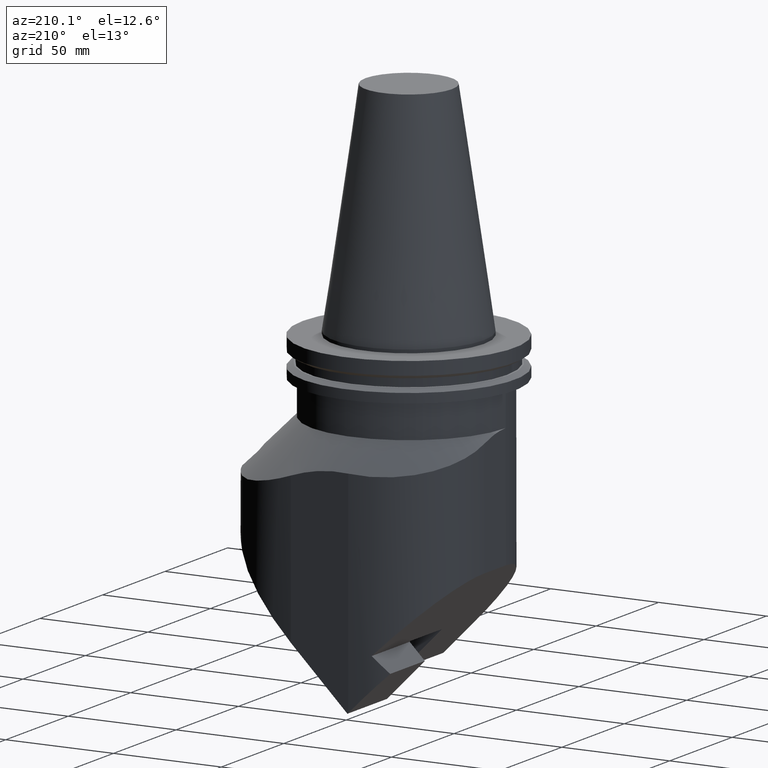
[diagram: clean part render]
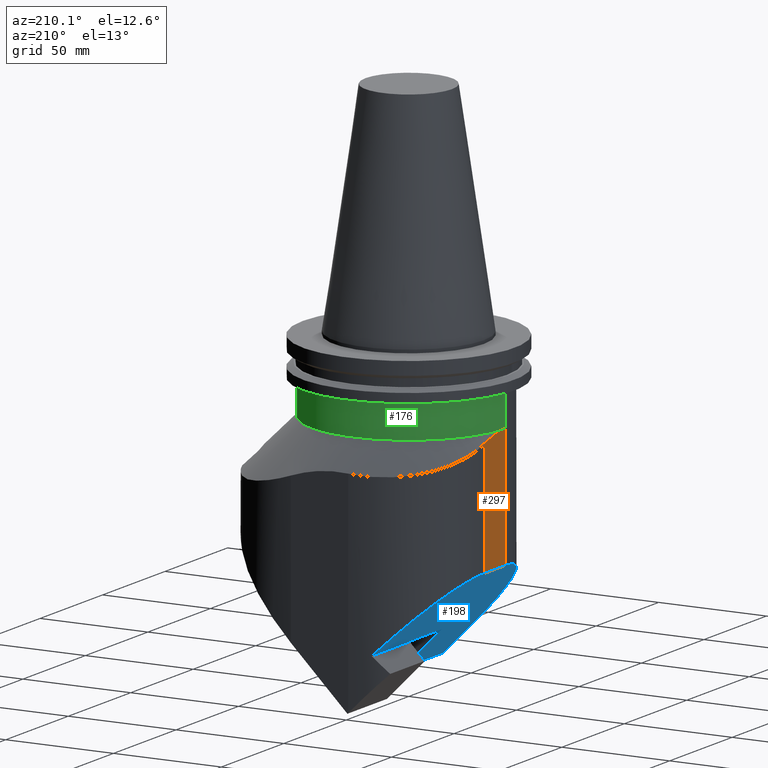
[diagram: same view with three faces highlighted in distinct colors, each labeled with its STEP entity id]
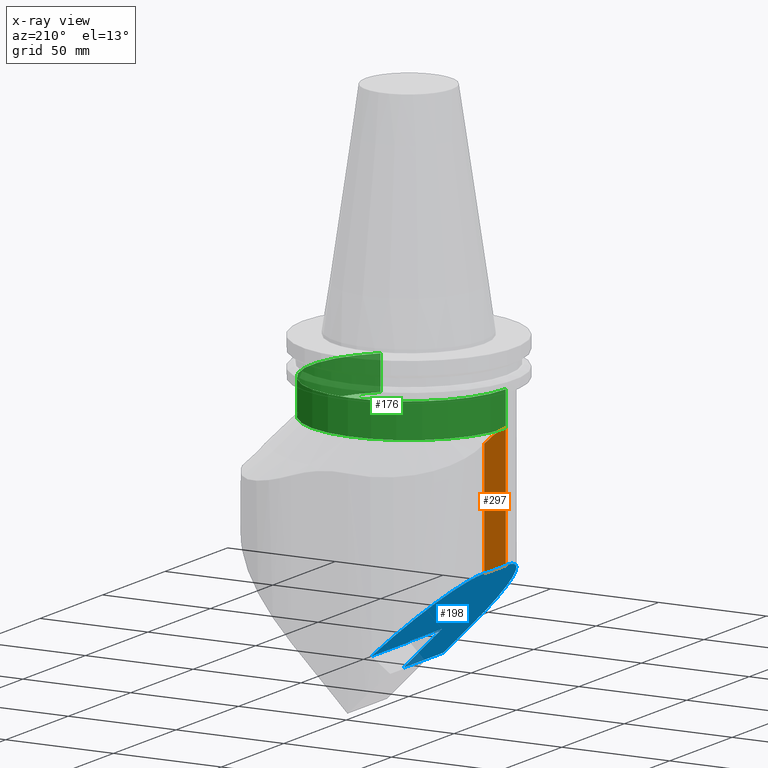
[diagram: x-ray of the same camera — body ghosted, the three highlighted faces saturated]
A machine part, auxiliary view with three faces highlighted in distinct colors.
The next image is the same camera in x-ray (body ghosted, the three faces saturated) — at least one of them is partly hidden behind the body in this view.
Their STEP definitions:

[orange] entity #297 — the highlighted planar face has unit normal (1, -0, 0).
#168=EDGE_CURVE('Unnamed[1]',#423,#439,#440,.T.);
#204=EDGE_CURVE('Unnamed[1]',#491,#408,#492,.T.);
#218=EDGE_CURVE('Unnamed[1]',#423,#491,#511,.T.);
#297=ADVANCED_FACE('Unnamed[1]',(#613),#614,.F.);
#342=EDGE_CURVE('Unnamed[1]',#439,#408,#670,.T.);
#408=VERTEX_POINT('',#741);
#423=VERTEX_POINT('',#761);
#439=VERTEX_POINT('',#792);
#440=LINE('',#793,#794);
#491=VERTEX_POINT('',#888);
#492=(B_SPLINE_CURVE(2,(#890,#891,#892,#893,#894),.UNSPECIFIED.,.F.,.F.)B_SPLINE_CURVE_WITH_KNOTS((3,2,3),(0.0,55.8128554370287,111.625710874057),.UNSPECIFIED.)RATIONAL_B_SPLINE_CURVE((1.0,1.11803398875032,1.0,1.11803398875032,1.0))BOUNDED_CURVE()REPRESENTATION_ITEM('')GEOMETRIC_REPRESENTATION_ITEM()CURVE());
#511=LINE('',#928,#929);
#613=FACE_OUTER_BOUND('',#1123,.T.);
#614=PLANE('',#1124);
#670=LINE('',#1225,#1226);
#741=CARTESIAN_POINT('',(-45.0000000000006,2.08978133942906E-013,-35.0000000000011));
#761=CARTESIAN_POINT('',(-44.9999999999966,17.0,-91.4578643728107));
#792=CARTESIAN_POINT('',(-44.9999999999966,5.65197079421115E-014,-91.4578643728107));
#793=CARTESIAN_POINT('',(-44.999999999998,4.25000000000007,-91.4578643728093));
#794=VECTOR('',#1316,1.0);
#888=CARTESIAN_POINT('',(-44.999999999998,17.0,-38.1040538832222));
#890=CARTESIAN_POINT('',(-44.999999999998,50.3115294937471,-57.5000000000014));
#891=CARTESIAN_POINT('',(-44.999999999998,20.1246117975008,-35.0000000000012));
#892=CARTESIAN_POINT('',(-44.999999999998,3.10418357685182E-014,-35.0000000000011));
#893=CARTESIAN_POINT('',(-44.999999999998,-20.1246117975007,-35.0000000000011));
#894=CARTESIAN_POINT('',(-44.9999999999981,-50.3115294937471,-57.5000000000014));
#928=CARTESIAN_POINT('',(-44.999999999998,17.0,-306.209870642012));
#929=VECTOR('',#1389,1.0);
#1123=EDGE_LOOP('',(#1502,#1503,#1504,#1505));
#1124=AXIS2_PLACEMENT_3D('',#1506,#1507,#1508);
#1225=CARTESIAN_POINT('',(-44.999999999998,8.83518355320941E-015,-306.209870642012));
#1226=VECTOR('',#1584,1.0);
#1316=DIRECTION('',(-8.62055525003064E-016,-1.0,6.40010920201612E-016));
#1389=DIRECTION('',(-1.22464679914735E-016,2.22044604925031E-016,1.0));
#1502=ORIENTED_EDGE('',*,*,#168,.T.);
#1503=ORIENTED_EDGE('',*,*,#342,.T.);
#1504=ORIENTED_EDGE('',*,*,#204,.F.);
#1505=ORIENTED_EDGE('',*,*,#218,.F.);
#1506=CARTESIAN_POINT('',(-44.999999999998,8.49999999999998,-306.209870642012));
#1507=DIRECTION('',(1.0,-8.62055525003064E-016,1.22464679914735E-016));
#1508=DIRECTION('',(8.62055525003064E-016,1.0,-2.22044604925031E-016));
#1584=DIRECTION('',(-1.22464679914735E-016,2.22044604925031E-016,1.0));

[blue] entity #198 — the highlighted planar face has unit normal (0.7071, -0, 0.7071).
#147=EDGE_CURVE('Unnamed[1]',#404,#405,#406,.T.);
#158=EDGE_CURVE('Unnamed[1]',#401,#423,#424,.T.);
#168=EDGE_CURVE('Unnamed[1]',#423,#439,#440,.T.);
#198=ADVANCED_FACE('Unnamed[1]',(#482),#483,.F.);
#246=EDGE_CURVE('Unnamed[1]',#546,#494,#547,.T.);
#253=EDGE_CURVE('Unnamed[1]',#540,#556,#557,.T.);
#306=EDGE_CURVE('Unnamed[1]',#546,#401,#625,.T.);
#326=EDGE_CURVE('Unnamed[1]',#439,#404,#651,.T.);
#338=EDGE_CURVE('Unnamed[1]',#405,#556,#666,.T.);
#340=EDGE_CURVE('Unnamed[1]',#494,#540,#668,.T.);
#401=VERTEX_POINT('',#731);
#404=VERTEX_POINT('',#735);
#405=VERTEX_POINT('',#736);
#406=LINE('',#737,#738);
#423=VERTEX_POINT('',#761);
#424=ELLIPSE('',#762,56.5685425032866,40.0);
#439=VERTEX_POINT('',#792);
#440=LINE('',#793,#794);
#482=FACE_OUTER_BOUND('',#860,.T.);
#483=PLANE('',#861);
#494=VERTEX_POINT('',#903);
#540=VERTEX_POINT('',#1018);
#546=VERTEX_POINT('',#1027);
#547=LINE('',#1028,#1029);
#556=VERTEX_POINT('',#1042);
#557=LINE('',#1043,#1044);
#625=LINE('',#1140,#1141);
#651=ELLIPSE('',#1196,45.2548340026293,32.0);
#666=LINE('',#1217,#1218);
#668=LINE('',#1221,#1222);
#731=CARTESIAN_POINT('',(-15.1358910394405,55.6944920219473,-121.321973342197));
#735=CARTESIAN_POINT('',(-13.0000000000001,-32.0,-123.457864382269));
#736=CARTESIAN_POINT('',(2.47106780657833,-32.0,-138.928932193421));
#737=CARTESIAN_POINT('',(44.1181871232674,-32.0000000000001,-180.576051522424));
#738=VECTOR('',#1290,1.0);
#761=CARTESIAN_POINT('',(-44.9999999999966,17.0,-91.4578643728107));
#762=AXIS2_PLACEMENT_3D('',#1306,#1307,#1308);
#792=CARTESIAN_POINT('',(-44.9999999999966,5.65197079421115E-014,-91.4578643728107));
#793=CARTESIAN_POINT('',(-44.999999999998,4.25000000000007,-91.4578643728093));
#794=VECTOR('',#1316,1.0);
#860=EDGE_LOOP('',(#1362,#1363,#1364,#1365,#1366,#1367,#1368,#1369,#1370));
#861=AXIS2_PLACEMENT_3D('',#1371,#1372,#1373);
#903=CARTESIAN_POINT('',(-15.4894444329048,25.3999999999998,-120.968419948628));
#1018=CARTESIAN_POINT('',(-15.4894444329048,-1.68714021023521E-014,-120.968419948628));
#1027=CARTESIAN_POINT('',(-15.1358910394406,25.3999999999998,-121.321973342197));
#1028=CARTESIAN_POINT('',(-13.7984388559087,25.3999999999998,-122.659425526124));
#1029=VECTOR('',#1419,1.0);
#1042=CARTESIAN_POINT('',(2.47106780657834,-3.1945794411254E-014,-138.928932193421));
#1043=CARTESIAN_POINT('',(-13.7984388559087,-2.11081258725946E-014,-122.659425526124));
#1044=VECTOR('',#1427,1.0);
#1140=CARTESIAN_POINT('',(-15.1358910394406,-2.02172037474114E-014,-121.321973342197));
#1141=VECTOR('',#1521,1.0);
#1196=AXIS2_PLACEMENT_3D('',#1560,#1561,#1562);
#1217=CARTESIAN_POINT('',(2.47106780657834,-3.1945794411254E-014,-138.928932193421));
#1218=VECTOR('',#1582,1.0);
#1221=CARTESIAN_POINT('',(-15.4894444329048,-3.28545741455502E-014,-120.968419948628));
#1222=VECTOR('',#1583,1.0);
#1290=DIRECTION('',(0.707106781082013,-4.71027737581921E-016,-0.707106781291082));
#1306=CARTESIAN_POINT('',(-4.99999999999801,17.0,-131.457864384636));
#1307=DIRECTION('',(0.707106781291082,-1.57009245938011E-016,0.707106781082013));
#1308=DIRECTION('',(-0.707106781082013,5.57623343192669E-016,0.707106781291082));
#1316=DIRECTION('',(-8.62055525003064E-016,-1.0,6.40010920201612E-016));
#1362=ORIENTED_EDGE('',*,*,#246,.T.);
#1363=ORIENTED_EDGE('',*,*,#340,.T.);
#1364=ORIENTED_EDGE('',*,*,#253,.T.);
#1365=ORIENTED_EDGE('',*,*,#338,.F.);
#1366=ORIENTED_EDGE('',*,*,#147,.F.);
#1367=ORIENTED_EDGE('',*,*,#326,.F.);
#1368=ORIENTED_EDGE('',*,*,#168,.F.);
#1369=ORIENTED_EDGE('',*,*,#158,.F.);
#1370=ORIENTED_EDGE('',*,*,#306,.F.);
#1371=CARTESIAN_POINT('',(-30.0679455197186,-1.0270457333054E-014,-106.389918857504));
#1372=DIRECTION('',(0.707106781291082,-1.57009245938011E-016,0.707106781082013));
#1373=DIRECTION('',(0.707106781082013,-4.71027737581921E-016,-0.707106781291082));
#1419=DIRECTION('',(-0.707106781082013,1.03051020627966E-015,0.707106781291082));
#1427=DIRECTION('',(0.707106781082013,-1.03051020688671E-015,-0.707106781291082));
#1521=DIRECTION('',(4.44089209850063E-016,1.0,-2.22044604925031E-016));
#1560=CARTESIAN_POINT('',(-13.0000000000001,3.52034258672099E-014,-123.457864382269));
#1561=DIRECTION('',(0.707106781291082,-1.57009245938011E-016,0.707106781082013));
#1562=DIRECTION('',(-0.707106781082013,5.57623343192669E-016,0.707106781291082));
#1582=DIRECTION('',(4.44089209850063E-016,1.0,-2.22044604925031E-016));
#1583=DIRECTION('',(-8.39703057648905E-016,-1.0,6.17658452840844E-016));

[green] entity #176 — the highlighted cylindrical surface (partial cylindrical patch) has radius 45 mm, axis along (-0, -0, -1).
#149=EDGE_CURVE('Unnamed[1]',#408,#409,#410,.T.);
#173=EDGE_CURVE('Unnamed[1]',#408,#436,#447,.T.);
#176=ADVANCED_FACE('Unnamed[1]',(#450),#451,.T.);
#284=EDGE_CURVE('Unnamed[1]',#596,#409,#597,.T.);
#324=EDGE_CURVE('Unnamed[1]',#436,#596,#649,.T.);
#408=VERTEX_POINT('',#741);
#409=VERTEX_POINT('',#742);
#410=CIRCLE('',#743,44.9999999999998);
#436=VERTEX_POINT('',#788);
#447=LINE('',#803,#804);
#450=FACE_OUTER_BOUND('',#808,.T.);
#451=CYLINDRICAL_SURFACE('',#809,44.9999999999998);
#596=VERTEX_POINT('',#1099);
#597=LINE('',#1100,#1101);
#649=CIRCLE('',#1193,44.9999999999997);
#741=CARTESIAN_POINT('',(-45.0000000000006,2.08978133942906E-013,-35.0000000000011));
#742=CARTESIAN_POINT('',(31.6385840391125,-32.0,-35.0000000000011));
#743=AXIS2_PLACEMENT_3D('',#1291,#1292,#1293);
#788=CARTESIAN_POINT('',(-44.999999999998,7.25974835802381E-014,-19.05));
#803=CARTESIAN_POINT('',(-45.0000000000006,1.48757445364433E-013,-306.209870642012));
#804=VECTOR('',#1323,1.0);
#808=EDGE_LOOP('',(#1325,#1326,#1327,#1328));
#809=AXIS2_PLACEMENT_3D('',#1329,#1330,#1331);
#1099=CARTESIAN_POINT('',(31.6385840391123,-32.0,-19.0500000000001));
#1100=CARTESIAN_POINT('',(31.6385840391124,-32.0,-27.0250000000006));
#1101=VECTOR('',#1479,1.0);
#1193=AXIS2_PLACEMENT_3D('',#1557,#1558,#1559);
#1291=CARTESIAN_POINT('',(-2.71333664378313E-014,-7.77156117237633E-015,-35.0000000000011));
#1292=DIRECTION('',(-1.04228178922544E-016,-2.22044604925031E-016,-1.0));
#1293=DIRECTION('',(1.0,-4.44089209850063E-016,-1.04228178922544E-016));
#1323=DIRECTION('',(-1.22464679914735E-016,2.22044604925031E-016,1.0));
#1325=ORIENTED_EDGE('',*,*,#284,.T.);
#1326=ORIENTED_EDGE('',*,*,#149,.F.);
#1327=ORIENTED_EDGE('',*,*,#173,.T.);
#1328=ORIENTED_EDGE('',*,*,#324,.T.);
#1329=CARTESIAN_POINT('',(-2.63021467109239E-014,-6.00075544809909E-015,-27.0250000000006));
#1330=DIRECTION('',(-1.04228178922544E-016,-2.22044604925031E-016,-1.0));
#1331=DIRECTION('',(1.0,-4.44089209850063E-016,-1.04228178922544E-016));
#1479=DIRECTION('',(-1.04228178922544E-016,-2.22044604925031E-016,-1.0));
#1557=CARTESIAN_POINT('',(-2.54709269840166E-014,-4.22994972382186E-015,-19.0500000000001));
#1558=DIRECTION('',(-1.04228178922544E-016,-2.22044604925031E-016,-1.0));
#1559=DIRECTION('',(1.0,-4.44089209850063E-016,-1.04228178922544E-016));